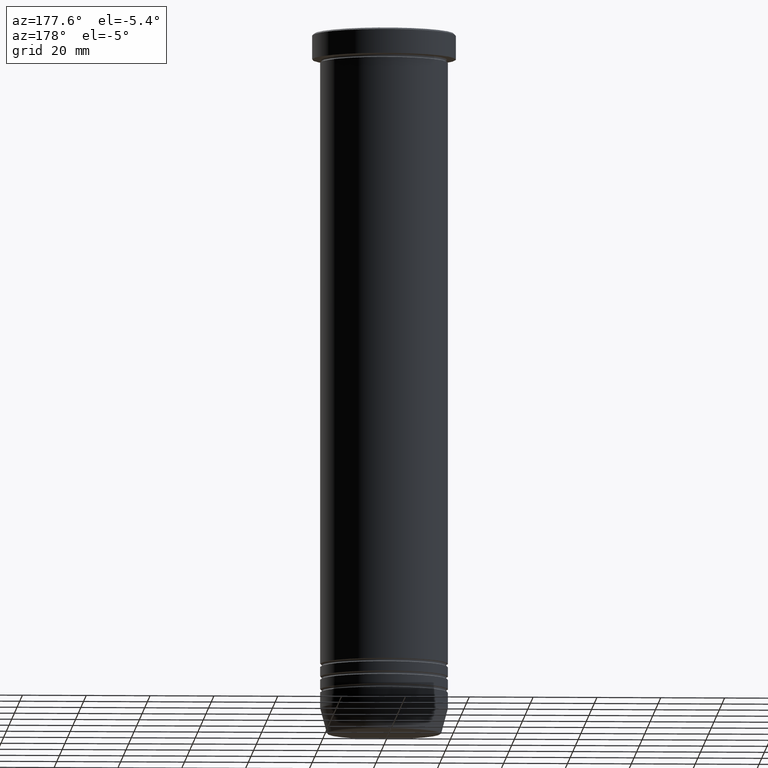
[diagram: clean part render]
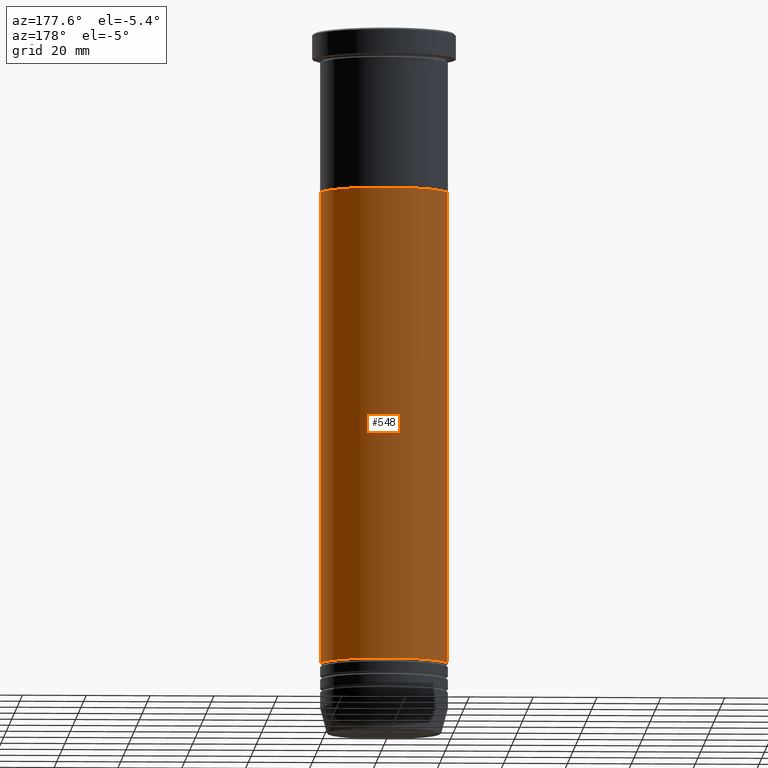
[diagram: same view with one face highlighted and labeled with its STEP entity id]
A machine part, auxiliary view. The second image highlights one B-rep face of the part: STEP entity #548.
In plain terms, the highlighted cylindrical surface (partial cylindrical patch) has radius 20 mm, axis along (-0, -0, 1).
Its self-contained STEP definition (entity closure, byte-faithful):
#41 = ORIENTED_EDGE ( 'NONE', *, *, #868, .T. ) ;
#86 = EDGE_CURVE ( 'NONE', #380, #789, #992, .T. ) ;
#102 = CARTESIAN_POINT ( 'NONE',  ( -19.99999999999999645, 2.449293598294706119E-15, 0.000000000000000000 ) ) ;
#107 = ORIENTED_EDGE ( 'NONE', *, *, #884, .F. ) ;
#122 = CYLINDRICAL_SURFACE ( 'NONE', #847, 19.99999999999999645 ) ;
#157 = DIRECTION ( 'NONE',  ( 1.000000000000000000, 0.000000000000000000, 0.000000000000000000 ) ) ;
#165 = DIRECTION ( 'NONE',  ( -0.000000000000000000, -0.000000000000000000, 1.000000000000000000 ) ) ;
#167 = CARTESIAN_POINT ( 'NONE',  ( 20.00000000000000000, 0.000000000000000000, -50.00000000000000000 ) ) ;
#184 = DIRECTION ( 'NONE',  ( -0.000000000000000000, -0.000000000000000000, 1.000000000000000000 ) ) ;
#215 = CIRCLE ( 'NONE', #369, 20.00000000000000000 ) ;
#240 = LINE ( 'NONE', #753, #700 ) ;
#266 = AXIS2_PLACEMENT_3D ( 'NONE', #570, #165, #157 ) ;
#299 = CIRCLE ( 'NONE', #266, 19.99999999999999289 ) ;
#325 = VERTEX_POINT ( 'NONE', #460 ) ;
#369 = AXIS2_PLACEMENT_3D ( 'NONE', #408, #666, #494 ) ;
#380 = VERTEX_POINT ( 'NONE', #979 ) ;
#408 = CARTESIAN_POINT ( 'NONE',  ( 0.000000000000000000, 0.000000000000000000, -50.00000000000000000 ) ) ;
#429 = ORIENTED_EDGE ( 'NONE', *, *, #852, .F. ) ;
#460 = CARTESIAN_POINT ( 'NONE',  ( 19.99999999999999289, 0.000000000000000000, -198.0000000000000000 ) ) ;
#475 = VERTEX_POINT ( 'NONE', #167 ) ;
#494 = DIRECTION ( 'NONE',  ( 1.000000000000000000, 0.000000000000000000, 0.000000000000000000 ) ) ;
#548 = ADVANCED_FACE ( 'NONE', ( #626 ), #122, .T. ) ;
#570 = CARTESIAN_POINT ( 'NONE',  ( 0.000000000000000000, 0.000000000000000000, -198.0000000000000000 ) ) ;
#626 = FACE_OUTER_BOUND ( 'NONE', #646, .T. ) ;
#646 = EDGE_LOOP ( 'NONE', ( #41, #704, #107, #429 ) ) ;
#666 = DIRECTION ( 'NONE',  ( -0.000000000000000000, -0.000000000000000000, 1.000000000000000000 ) ) ;
#680 = VECTOR ( 'NONE', #762, 1000.000000000000000 ) ;
#700 = VECTOR ( 'NONE', #184, 1000.000000000000000 ) ;
#704 = ORIENTED_EDGE ( 'NONE', *, *, #86, .T. ) ;
#753 = CARTESIAN_POINT ( 'NONE',  ( 19.99999999999999645, 0.000000000000000000, 0.000000000000000000 ) ) ;
#762 = DIRECTION ( 'NONE',  ( -0.000000000000000000, -0.000000000000000000, 1.000000000000000000 ) ) ;
#789 = VERTEX_POINT ( 'NONE', #973 ) ;
#801 = DIRECTION ( 'NONE',  ( -0.000000000000000000, -0.000000000000000000, 1.000000000000000000 ) ) ;
#847 = AXIS2_PLACEMENT_3D ( 'NONE', #1039, #801, #870 ) ;
#852 = EDGE_CURVE ( 'NONE', #325, #475, #240, .T. ) ;
#868 = EDGE_CURVE ( 'NONE', #325, #380, #299, .T. ) ;
#870 = DIRECTION ( 'NONE',  ( 1.000000000000000000, 0.000000000000000000, 0.000000000000000000 ) ) ;
#884 = EDGE_CURVE ( 'NONE', #475, #789, #215, .T. ) ;
#973 = CARTESIAN_POINT ( 'NONE',  ( -20.00000000000000000, 2.449293598294706513E-15, -50.00000000000000000 ) ) ;
#979 = CARTESIAN_POINT ( 'NONE',  ( -19.99999999999999289, 2.449293598294705724E-15, -198.0000000000000000 ) ) ;
#992 = LINE ( 'NONE', #102, #680 ) ;
#1039 = CARTESIAN_POINT ( 'NONE',  ( 0.000000000000000000, 0.000000000000000000, 0.000000000000000000 ) ) ;